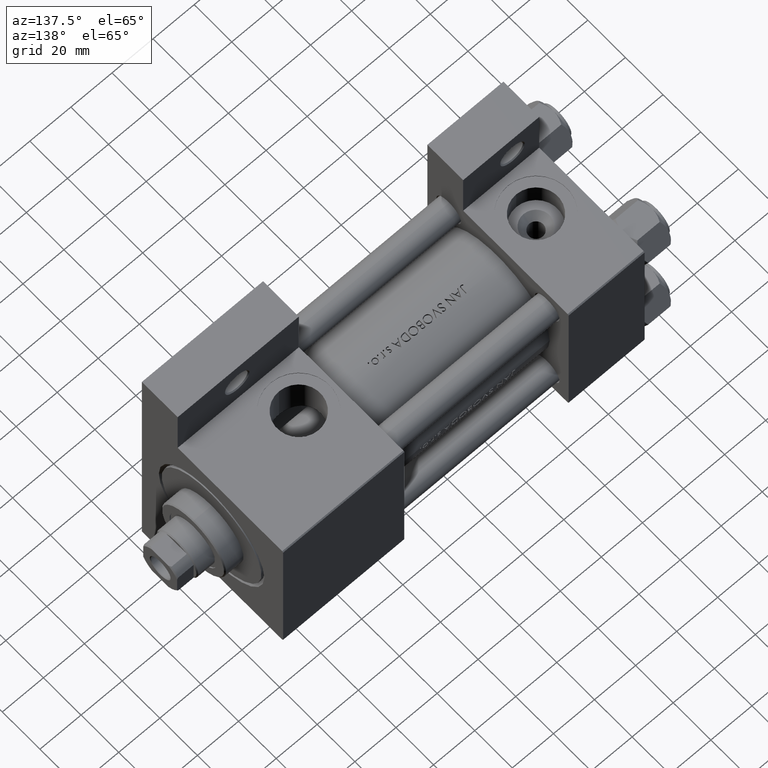
[diagram: clean part render]
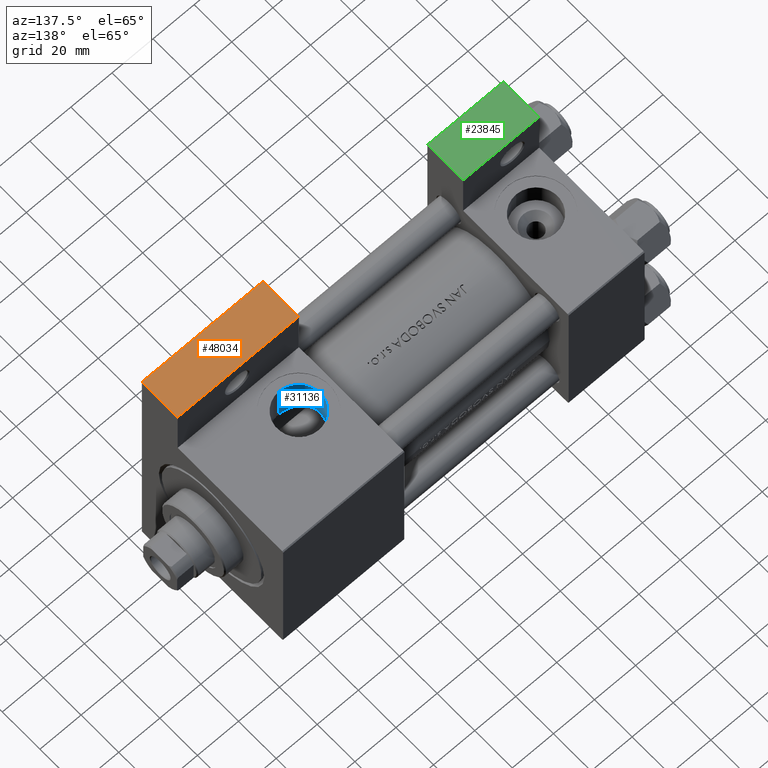
[diagram: same view with three faces highlighted in distinct colors, each labeled with its STEP entity id]
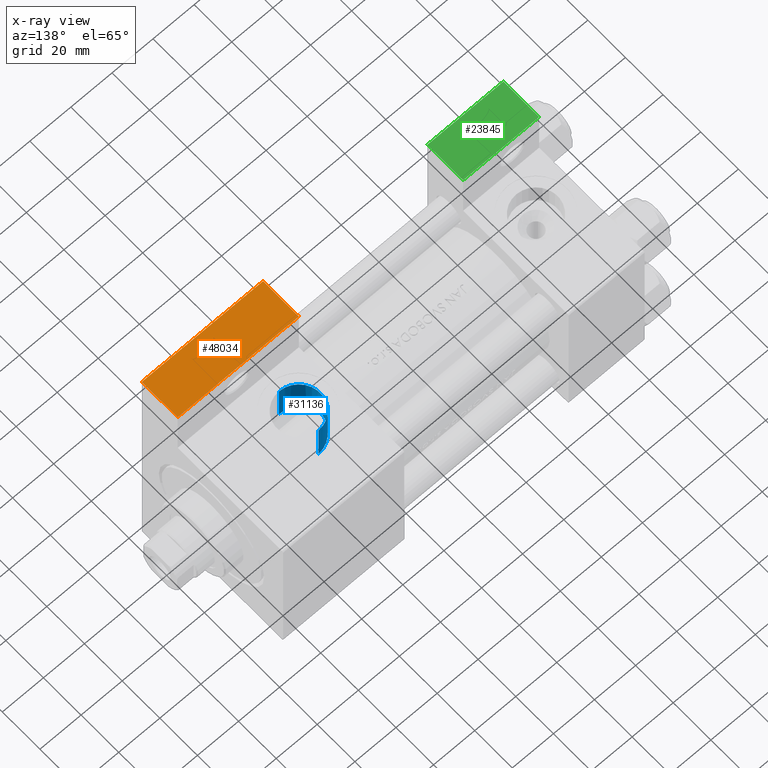
[diagram: x-ray of the same camera — body ghosted, the three highlighted faces saturated]
A machine part, auxiliary view with three faces highlighted in distinct colors.
The next image is the same camera in x-ray (body ghosted, the three faces saturated) — at least one of them is partly hidden behind the body in this view.
Their STEP definitions:

[orange] entity #48034 — the highlighted planar face has unit normal (-0, 0, 1).
#772 = CARTESIAN_POINT ( 'NONE',  ( 116.9999999999999858, -63.50000000000000000, -18.50000000000000000 ) ) ;
#992 = VERTEX_POINT ( 'NONE', #772 ) ;
#5893 = DIRECTION ( 'NONE',  ( -4.704334850106594808E-16, -1.000000000000000000, 0.000000000000000000 ) ) ;
#6637 = CARTESIAN_POINT ( 'NONE',  ( 116.9999999999999858, -63.50000000000000000, -37.50000000000000000 ) ) ;
#7113 = LINE ( 'NONE', #22287, #29274 ) ;
#8470 = CARTESIAN_POINT ( 'NONE',  ( 116.9999999999999858, -63.50000000000000000, -18.50000000000000000 ) ) ;
#9638 = CARTESIAN_POINT ( 'NONE',  ( 116.9999999999999858, -63.50000000000000000, -18.50000000000000000 ) ) ;
#15010 = ORIENTED_EDGE ( 'NONE', *, *, #22112, .F. ) ;
#15122 = EDGE_CURVE ( 'NONE', #992, #31961, #34629, .T. ) ;
#15504 = ORIENTED_EDGE ( 'NONE', *, *, #15122, .T. ) ;
#17572 = DIRECTION ( 'NONE',  ( -1.000000000000000000, 4.704334850106594808E-16, -0.000000000000000000 ) ) ;
#18436 = CARTESIAN_POINT ( 'NONE',  ( 176.0000000000000000, -63.50000000000002842, -37.50000000000000000 ) ) ;
#18440 = CARTESIAN_POINT ( 'NONE',  ( 176.0000000000000000, -63.50000000000002842, -18.50000000000000000 ) ) ;
#18583 = DIRECTION ( 'NONE',  ( 1.000000000000000000, -4.704334850106594808E-16, 0.000000000000000000 ) ) ;
#19348 = EDGE_CURVE ( 'NONE', #36624, #31961, #27366, .T. ) ;
#19598 = VECTOR ( 'NONE', #42566, 1000.000000000000000 ) ;
#22112 = EDGE_CURVE ( 'NONE', #25455, #36624, #33167, .T. ) ;
#22287 = CARTESIAN_POINT ( 'NONE',  ( 116.9999999999999858, -63.50000000000000000, -18.50000000000000000 ) ) ;
#22295 = ORIENTED_EDGE ( 'NONE', *, *, #19348, .F. ) ;
#25455 = VERTEX_POINT ( 'NONE', #25566 ) ;
#25566 = CARTESIAN_POINT ( 'NONE',  ( 176.0000000000000000, -63.50000000000002842, -18.50000000000000000 ) ) ;
#27366 = LINE ( 'NONE', #27605, #19598 ) ;
#27605 = CARTESIAN_POINT ( 'NONE',  ( 116.9999999999999858, -63.50000000000000000, -37.50000000000000000 ) ) ;
#28477 = VECTOR ( 'NONE', #48849, 1000.000000000000000 ) ;
#28560 = FACE_OUTER_BOUND ( 'NONE', #41344, .T. ) ;
#29274 = VECTOR ( 'NONE', #17572, 1000.000000000000000 ) ;
#30342 = AXIS2_PLACEMENT_3D ( 'NONE', #9638, #5893, #18583 ) ;
#30542 = ORIENTED_EDGE ( 'NONE', *, *, #36031, .T. ) ;
#31961 = VERTEX_POINT ( 'NONE', #6637 ) ;
#33167 = LINE ( 'NONE', #18440, #28477 ) ;
#34629 = LINE ( 'NONE', #8470, #40176 ) ;
#35588 = DIRECTION ( 'NONE',  ( 0.000000000000000000, 0.000000000000000000, -1.000000000000000000 ) ) ;
#36031 = EDGE_CURVE ( 'NONE', #25455, #992, #7113, .T. ) ;
#36624 = VERTEX_POINT ( 'NONE', #18436 ) ;
#40176 = VECTOR ( 'NONE', #35588, 1000.000000000000000 ) ;
#41344 = EDGE_LOOP ( 'NONE', ( #22295, #15010, #30542, #15504 ) ) ;
#42566 = DIRECTION ( 'NONE',  ( -1.000000000000000000, 4.704334850106594808E-16, -0.000000000000000000 ) ) ;
#43758 = PLANE ( 'NONE',  #30342 ) ;
#48034 = ADVANCED_FACE ( 'NONE', ( #28560 ), #43758, .T. ) ;
#48849 = DIRECTION ( 'NONE',  ( 0.000000000000000000, 0.000000000000000000, -1.000000000000000000 ) ) ;

[blue] entity #31136 — the highlighted cylindrical surface (edge-blend (fillet) strip) has radius 10.48 mm, axis along (-0, -0, 1).
#18 = CARTESIAN_POINT ( 'NONE',  ( 123.7848721841020421, -20.41767756798353872, -2.366995833931133664 ) ) ;
#264 = CARTESIAN_POINT ( 'NONE',  ( 124.6245642930966113, -19.83139452378803469, 4.733173975255230204 ) ) ;
#500 = CARTESIAN_POINT ( 'NONE',  ( 123.5830884358184534, -20.49411676436530527, -1.342674851160319704 ) ) ;
#1051 = VERTEX_POINT ( 'NONE', #16682 ) ;
#2259 = CARTESIAN_POINT ( 'NONE',  ( 131.2485181366845381, -18.10389330548456499, -10.11833674566096164 ) ) ;
#2399 = DIRECTION ( 'NONE',  ( 0.000000000000000000, 0.000000000000000000, -1.000000000000000000 ) ) ;
#3510 = CARTESIAN_POINT ( 'NONE',  ( 125.7233602415656009, -19.29242988523072810, 6.437503504559503931 ) ) ;
#3747 = CARTESIAN_POINT ( 'NONE',  ( 126.3390100190131307, -19.38994764023254191, -7.159155389767046351 ) ) ;
#4488 = CARTESIAN_POINT ( 'NONE',  ( 127.5874752611917700, -18.96115153041446888, -8.296067076494246351 ) ) ;
#5499 = AXIS2_PLACEMENT_3D ( 'NONE', #39548, #36062, #31607 ) ;
#7258 = CARTESIAN_POINT ( 'NONE',  ( 123.8700277560727159, -20.38347105376920254, -2.708475799773470527 ) ) ;
#7983 = CARTESIAN_POINT ( 'NONE',  ( 132.6144639565822274, -17.35559248084098627, 10.41144764597006400 ) ) ;
#8233 = CARTESIAN_POINT ( 'NONE',  ( 123.5217053303388042, -20.48332967077006472, 0.3975496392329764261 ) ) ;
#10749 = CARTESIAN_POINT ( 'NONE',  ( 134.0000000000000000, -37.29999999999999716, 10.47999999999998977 ) ) ;
#11219 = CARTESIAN_POINT ( 'NONE',  ( 123.8951751743530565, -20.23535558307757753, 2.800358647656728817 ) ) ;
#11456 = CARTESIAN_POINT ( 'NONE',  ( 124.1894306476518466, -20.25102656977831472, -3.701459934073193736 ) ) ;
#11693 = CARTESIAN_POINT ( 'NONE',  ( 124.1012934303698643, -20.11685413836227454, 3.459060791729251960 ) ) ;
#11945 = CARTESIAN_POINT ( 'NONE',  ( 125.5187940887307860, -19.38832963419613975, 6.165523076675714975 ) ) ;
#12188 = CARTESIAN_POINT ( 'NONE',  ( 127.0925800491786930, -18.70257500022393060, 7.909780117561131085 ) ) ;
#13966 = CARTESIAN_POINT ( 'NONE',  ( 127.8618195419076784, -18.87524337706391719, -8.501152861621344314 ) ) ;
#14260 = CIRCLE ( 'NONE', #5499, 10.47999999999998622 ) ;
#14951 = CARTESIAN_POINT ( 'NONE',  ( 131.5877247240034364, -17.48338598744718198, 10.20456839096644686 ) ) ;
#15120 = CARTESIAN_POINT ( 'NONE',  ( 134.0000000000000000, -17.90669148670408362, -10.47999999999998089 ) ) ;
#15197 = CARTESIAN_POINT ( 'NONE',  ( 130.2712649677957302, -17.72514759185509803, 9.800086280978518971 ) ) ;
#15680 = CARTESIAN_POINT ( 'NONE',  ( 123.6144618885457902, -20.41033060918976361, 1.446801902193829426 ) ) ;
#15924 = CARTESIAN_POINT ( 'NONE',  ( 125.4759556616729412, -19.72067553347483582, -6.106406543856685687 ) ) ;
#16348 = EDGE_CURVE ( 'NONE', #35813, #39730, #21476, .T. ) ;
#16516 = EDGE_LOOP ( 'NONE', ( #38611, #36119, #47342, #39761 ) ) ;
#16682 = CARTESIAN_POINT ( 'NONE',  ( 134.0000000000000000, -37.29999999999999716, -10.47999999999998266 ) ) ;
#17084 = LINE ( 'NONE', #32294, #45031 ) ;
#17702 = CARTESIAN_POINT ( 'NONE',  ( 129.3089432184007137, -18.47132649600307630, -9.396531025392599545 ) ) ;
#18652 = LINE ( 'NONE', #30135, #34180 ) ;
#18682 = CARTESIAN_POINT ( 'NONE',  ( 130.5915143732480885, -17.65692230102833449, 9.916186572683963973 ) ) ;
#18926 = CARTESIAN_POINT ( 'NONE',  ( 123.8085289422961637, -20.28709306372374854, 2.466525892830128797 ) ) ;
#19174 = CARTESIAN_POINT ( 'NONE',  ( 127.0649927009444866, -19.13289277132431820, -7.864532804023773416 ) ) ;
#19413 = CARTESIAN_POINT ( 'NONE',  ( 124.5840202247433837, -20.08544715864211128, -4.651927720320709447 ) ) ;
#21171 = CARTESIAN_POINT ( 'NONE',  ( 132.6018487986952721, -17.94656342485971479, -10.40934886090304268 ) ) ;
#21476 = B_SPLINE_CURVE_WITH_KNOTS ( 'NONE', 3,
 ( #22184, #25172, #21171, #36390, #2259, #40379, #36647, #17702, #48102, #13966, #4488, #19174, #22915, #3747, #34402, #31139, #15924, #45597, #19413, #11456, #37869, #7258, #18, #500, #30892, #8233, #37630, #15680, #42099, #18926, #11219, #11693, #34159, #264, #30661, #11945, #3510, #26415, #46323, #12188, #41859, #27145, #34882, #15197, #18682, #45839, #14951, #7983, #26902, #45354 ),
 .UNSPECIFIED., .F., .F.,
 ( 4, 2, 2, 2, 2, 2, 2, 2, 2, 2, 2, 2, 2, 2, 2, 2, 2, 2, 2, 2, 2, 2, 2, 2, 4 ),
 ( 0.000000000000000000, 0.002085732680859654978, 0.003128599021289482467, 0.004171465361719310823, 0.006257198042578968403, 0.007300064383008829719, 0.008342930723438689300, 0.009385797063868552351, 0.01042866340429841193, 0.01251439608515815191, 0.01355726242558803231, 0.01460012876601791271, 0.01668586144687767697, 0.01772872778730755911, 0.01877159412773744471, 0.01981446046816732337, 0.02085732680859720897, 0.02294305948945695936, 0.02398592582988682068, 0.02502879217031667852, 0.02711452485117646014, 0.02920025753203624522, 0.03024312387246613429, 0.03128599021289601989, 0.03337172289375580497 ),
 .UNSPECIFIED. ) ;
#22184 = CARTESIAN_POINT ( 'NONE',  ( 134.0000000000000000, -17.90669148670408362, -10.47999999999998089 ) ) ;
#22915 = CARTESIAN_POINT ( 'NONE',  ( 126.8154452386611410, -19.21913497042929464, -7.637175280490519746 ) ) ;
#25172 = CARTESIAN_POINT ( 'NONE',  ( 133.2936450912457644, -17.90669148670408362, -10.47999999999998089 ) ) ;
#26415 = CARTESIAN_POINT ( 'NONE',  ( 126.1545344758437892, -19.09783805311037241, 6.956499678098867712 ) ) ;
#26566 = CARTESIAN_POINT ( 'NONE',  ( 134.0000000000000000, -17.31154528053461306, 10.47999999999999154 ) ) ;
#26902 = CARTESIAN_POINT ( 'NONE',  ( 133.3044545345210281, -17.31154528053461306, 10.47999999999999154 ) ) ;
#27145 = CARTESIAN_POINT ( 'NONE',  ( 128.7374011664608133, -18.12441261360091715, 9.088217275655873451 ) ) ;
#27698 = VERTEX_POINT ( 'NONE', #10749 ) ;
#28207 = EDGE_CURVE ( 'NONE', #35813, #1051, #18652, .T. ) ;
#29047 = FACE_OUTER_BOUND ( 'NONE', #16516, .T. ) ;
#29925 = AXIS2_PLACEMENT_3D ( 'NONE', #44499, #47988, #2399 ) ;
#30135 = CARTESIAN_POINT ( 'NONE',  ( 134.0000000000000000, 37.50100000000000477, -10.47999999999997556 ) ) ;
#30661 = CARTESIAN_POINT ( 'NONE',  ( 124.9495768395414927, -19.66322346998766690, 5.326983638994167158 ) ) ;
#30892 = CARTESIAN_POINT ( 'NONE',  ( 123.5169168091323399, -20.51137673509301962, -0.6516029565374275023 ) ) ;
#31136 = ADVANCED_FACE ( 'NONE', ( #29047 ), #40258, .F. ) ;
#31139 = CARTESIAN_POINT ( 'NONE',  ( 125.6811096513063575, -19.63967553149034373, -6.382942706579981085 ) ) ;
#31227 = EDGE_CURVE ( 'NONE', #39730, #27698, #17084, .T. ) ;
#31607 = DIRECTION ( 'NONE',  ( 0.000000000000000000, 0.000000000000000000, -1.000000000000000000 ) ) ;
#32294 = CARTESIAN_POINT ( 'NONE',  ( 134.0000000000000000, 37.50100000000000477, 10.47999999999999687 ) ) ;
#34159 = CARTESIAN_POINT ( 'NONE',  ( 124.2215461673904855, -20.04967575897763865, 3.785508326117122735 ) ) ;
#34180 = VECTOR ( 'NONE', #45325, 1000.000000000000000 ) ;
#34402 = CARTESIAN_POINT ( 'NONE',  ( 126.1121230715595800, -19.47452367214849289, -6.908494176797777442 ) ) ;
#34882 = CARTESIAN_POINT ( 'NONE',  ( 129.3335954883717704, -17.94904599600547712, 9.408192873974185133 ) ) ;
#35813 = VERTEX_POINT ( 'NONE', #15120 ) ;
#36062 = DIRECTION ( 'NONE',  ( 0.000000000000000000, -1.000000000000000000, -8.673617379884036705E-17 ) ) ;
#36119 = ORIENTED_EDGE ( 'NONE', *, *, #31227, .T. ) ;
#36390 = CARTESIAN_POINT ( 'NONE',  ( 131.5843153394802414, -18.05810427117003059, -10.20365670940337033 ) ) ;
#36647 = CARTESIAN_POINT ( 'NONE',  ( 130.2574528650403920, -18.27226487592814053, -9.794965196591773449 ) ) ;
#37630 = CARTESIAN_POINT ( 'NONE',  ( 123.5411270509841870, -20.46474067275493880, 0.7514081746990659560 ) ) ;
#37869 = CARTESIAN_POINT ( 'NONE',  ( 124.0726434498571678, -20.29999609518735681, -3.376354653621502777 ) ) ;
#38611 = ORIENTED_EDGE ( 'NONE', *, *, #16348, .T. ) ;
#39548 = CARTESIAN_POINT ( 'NONE',  ( 134.0000000000000000, -37.29999999999999716, 3.486794186713383443E-15 ) ) ;
#39730 = VERTEX_POINT ( 'NONE', #26566 ) ;
#39761 = ORIENTED_EDGE ( 'NONE', *, *, #28207, .F. ) ;
#40258 = CYLINDRICAL_SURFACE ( 'NONE', #29925, 10.47999999999998622 ) ;
#40379 = CARTESIAN_POINT ( 'NONE',  ( 130.5836453213384516, -18.21117968299172318, -9.913622529243992787 ) ) ;
#41859 = CARTESIAN_POINT ( 'NONE',  ( 127.6096037740494182, -18.50380750299995825, 8.333875197508973542 ) ) ;
#42099 = CARTESIAN_POINT ( 'NONE',  ( 123.6681735545246852, -20.37457923911944135, 1.789747077269108644 ) ) ;
#42528 = EDGE_CURVE ( 'NONE', #27698, #1051, #14260, .T. ) ;
#44499 = CARTESIAN_POINT ( 'NONE',  ( 134.0000000000000000, 37.50100000000000477, 9.974746723040443104E-15 ) ) ;
#45031 = VECTOR ( 'NONE', #47478, 1000.000000000000000 ) ;
#45325 = DIRECTION ( 'NONE',  ( -0.000000000000000000, -1.000000000000000000, -8.673617379884036705E-17 ) ) ;
#45354 = CARTESIAN_POINT ( 'NONE',  ( 134.0000000000000000, -17.31154528053461306, 10.47999999999999154 ) ) ;
#45597 = CARTESIAN_POINT ( 'NONE',  ( 124.9055833317326289, -19.95017549749733377, -5.252667561004569663 ) ) ;
#45839 = CARTESIAN_POINT ( 'NONE',  ( 131.2485603725488659, -17.53617776474739998, 10.11820687614874004 ) ) ;
#46323 = CARTESIAN_POINT ( 'NONE',  ( 126.3809730746911555, -18.99918516550075864, 7.203644680487138352 ) ) ;
#47342 = ORIENTED_EDGE ( 'NONE', *, *, #42528, .T. ) ;
#47478 = DIRECTION ( 'NONE',  ( -0.000000000000000000, -1.000000000000000000, -8.673617379884036705E-17 ) ) ;
#47988 = DIRECTION ( 'NONE',  ( -0.000000000000000000, -1.000000000000000000, -8.673617379884036705E-17 ) ) ;
#48102 = CARTESIAN_POINT ( 'NONE',  ( 128.7109170005340957, -18.62590504215680198, -9.073138281531837990 ) ) ;

[green] entity #23845 — the highlighted planar face has unit normal (0, 0, 1).
#3734 = PLANE ( 'NONE',  #7863 ) ;
#3984 = CARTESIAN_POINT ( 'NONE',  ( 3.977209754999747208E-16, -63.49999999999998579, 26.72167621838007889 ) ) ;
#4846 = LINE ( 'NONE', #32230, #42032 ) ;
#5922 = ORIENTED_EDGE ( 'NONE', *, *, #37061, .F. ) ;
#7735 = DIRECTION ( 'NONE',  ( 0.000000000000000000, -1.734723475976806848E-16, -1.000000000000000000 ) ) ;
#7863 = AXIS2_PLACEMENT_3D ( 'NONE', #3984, #18429, #7735 ) ;
#7884 = EDGE_CURVE ( 'NONE', #43494, #8119, #30778, .T. ) ;
#8119 = VERTEX_POINT ( 'NONE', #22196 ) ;
#9860 = ORIENTED_EDGE ( 'NONE', *, *, #30177, .T. ) ;
#14710 = VECTOR ( 'NONE', #16880, 1000.000000000000000 ) ;
#15310 = EDGE_CURVE ( 'NONE', #8119, #26477, #32339, .T. ) ;
#16880 = DIRECTION ( 'NONE',  ( 0.000000000000000000, -1.734723475976806848E-16, -1.000000000000000000 ) ) ;
#17960 = VECTOR ( 'NONE', #25104, 1000.000000000000000 ) ;
#18429 = DIRECTION ( 'NONE',  ( 0.000000000000000000, -1.000000000000000000, 1.734723475976806848E-16 ) ) ;
#22196 = CARTESIAN_POINT ( 'NONE',  ( 37.00000000000000000, -63.50000000000000000, -18.50000000000000355 ) ) ;
#23845 = ADVANCED_FACE ( 'NONE', ( #26405 ), #3734, .T. ) ;
#25104 = DIRECTION ( 'NONE',  ( 0.000000000000000000, -1.734723475976806848E-16, -1.000000000000000000 ) ) ;
#25351 = CARTESIAN_POINT ( 'NONE',  ( 37.00000000000000000, -63.49999999999998579, 26.72167621838007889 ) ) ;
#26405 = FACE_OUTER_BOUND ( 'NONE', #41297, .T. ) ;
#26477 = VERTEX_POINT ( 'NONE', #48270 ) ;
#30177 = EDGE_CURVE ( 'NONE', #43494, #44257, #32096, .T. ) ;
#30778 = LINE ( 'NONE', #45722, #32912 ) ;
#32096 = LINE ( 'NONE', #47784, #17960 ) ;
#32230 = CARTESIAN_POINT ( 'NONE',  ( 3.977209754999747208E-16, -63.50000000000000000, -37.49999999999999289 ) ) ;
#32339 = LINE ( 'NONE', #25351, #14710 ) ;
#32912 = VECTOR ( 'NONE', #33796, 1000.000000000000000 ) ;
#33796 = DIRECTION ( 'NONE',  ( 1.000000000000000000, 0.000000000000000000, 0.000000000000000000 ) ) ;
#35544 = CARTESIAN_POINT ( 'NONE',  ( 3.977209754999747208E-16, -63.50000000000000000, -37.49999999999999289 ) ) ;
#35716 = DIRECTION ( 'NONE',  ( -1.000000000000000000, -0.000000000000000000, -0.000000000000000000 ) ) ;
#37061 = EDGE_CURVE ( 'NONE', #26477, #44257, #4846, .T. ) ;
#37065 = CARTESIAN_POINT ( 'NONE',  ( 3.977209754999747208E-16, -63.50000000000000000, -18.50000000000000355 ) ) ;
#37616 = ORIENTED_EDGE ( 'NONE', *, *, #7884, .F. ) ;
#40241 = ORIENTED_EDGE ( 'NONE', *, *, #15310, .F. ) ;
#41297 = EDGE_LOOP ( 'NONE', ( #37616, #9860, #5922, #40241 ) ) ;
#42032 = VECTOR ( 'NONE', #35716, 1000.000000000000000 ) ;
#43494 = VERTEX_POINT ( 'NONE', #37065 ) ;
#44257 = VERTEX_POINT ( 'NONE', #35544 ) ;
#45722 = CARTESIAN_POINT ( 'NONE',  ( 3.977209754999747208E-16, -63.50000000000000000, -18.50000000000000355 ) ) ;
#47784 = CARTESIAN_POINT ( 'NONE',  ( 3.977209754999747208E-16, -63.49999999999998579, 26.72167621838007889 ) ) ;
#48270 = CARTESIAN_POINT ( 'NONE',  ( 37.00000000000000000, -63.50000000000000000, -37.49999999999999289 ) ) ;